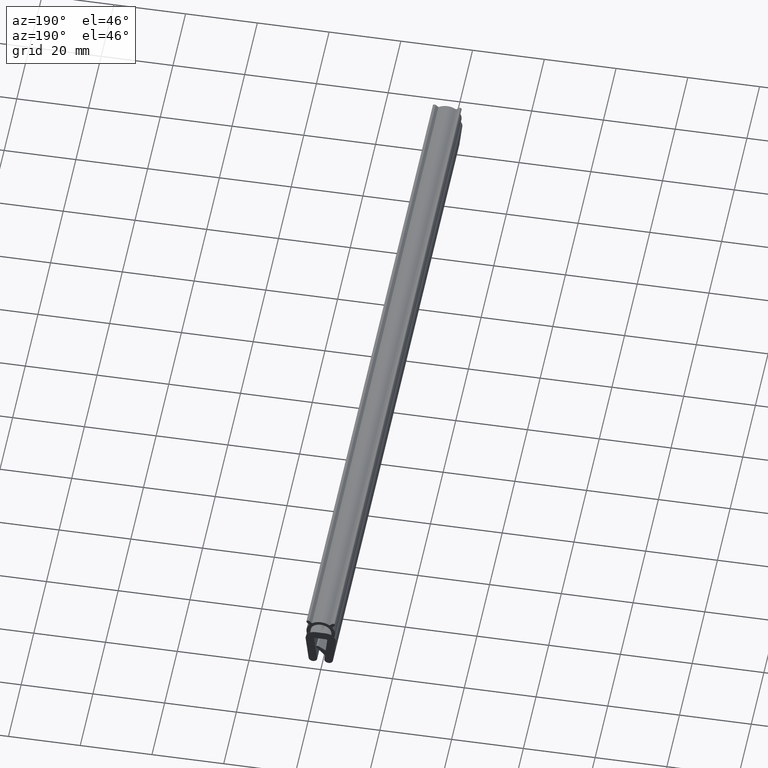
[diagram: clean part render]
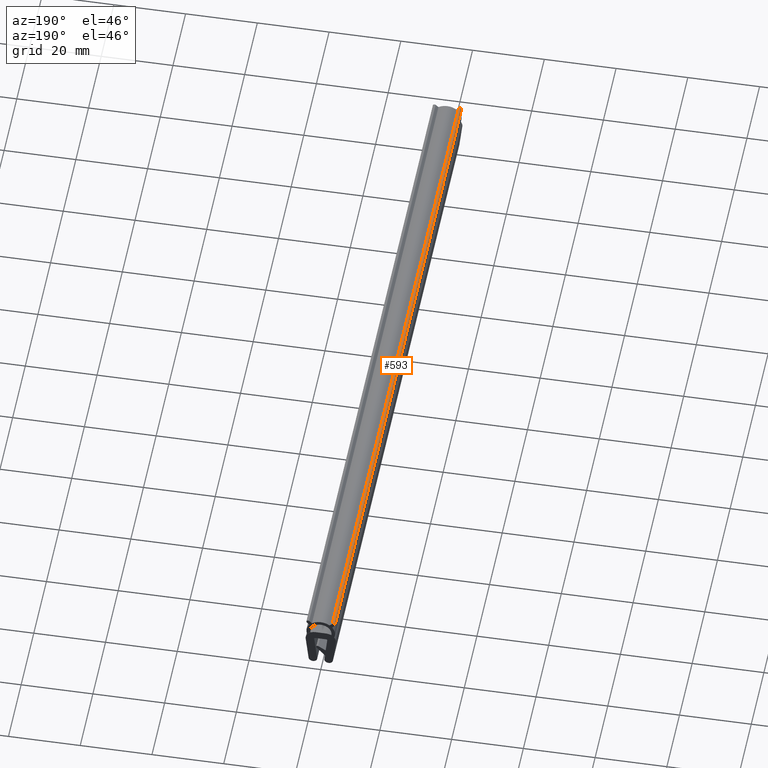
[diagram: same view with one face highlighted and labeled with its STEP entity id]
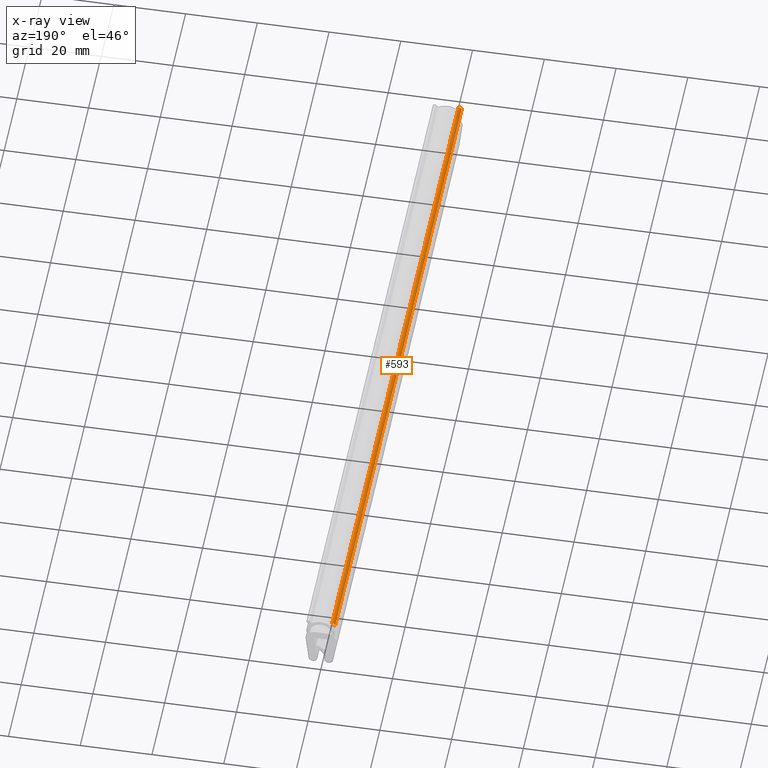
[diagram: x-ray of the same camera — body ghosted, the highlighted face saturated]
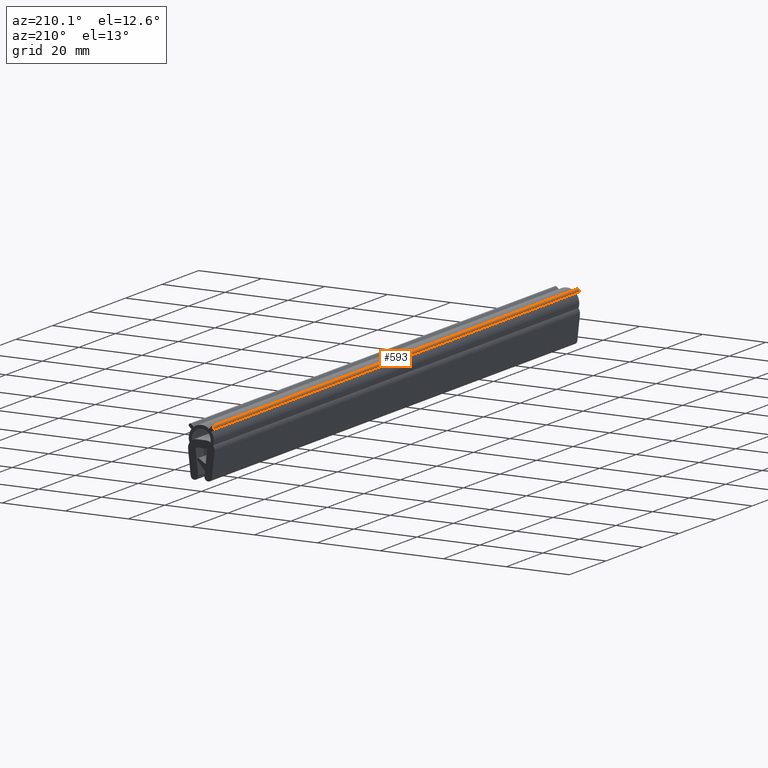
[diagram: same view with one face highlighted and labeled with its STEP entity id]
A machine part, auxiliary view. The second image highlights one B-rep face of the part: STEP entity #593.
The next image is the same camera in x-ray: the body ghosted, the highlighted face saturated — about 0% of this face is hidden behind the body in this view.
A second angle (auxiliary view) of the same face is appended — the face is thin or edge-on in the first view.
In plain terms, the highlighted face is a freeform B-spline surface patch.
Its self-contained STEP definition (entity closure, byte-faithful):
#163=CARTESIAN_POINT('',(-3.146446609406730,0.0,-0.146446609406737));
#164=VERTEX_POINT('',#163);
#170=CARTESIAN_POINT('',(-3.853553390593290,0.0,-0.853553390593334));
#171=VERTEX_POINT('',#170);
#172=CARTESIAN_POINT('',(-3.146446609406730,0.0,-0.146446609406737));
#173=CARTESIAN_POINT('',(-3.350570754638666,0.0,0.057677535825195));
#174=CARTESIAN_POINT('',(-3.629409522551270,0.0,-0.017037086855482));
#175=CARTESIAN_POINT('',(-3.908248290463875,0.0,-0.091751709536160));
#176=CARTESIAN_POINT('',(-3.982962913144538,0.0,-0.370590477448768));
#177=CARTESIAN_POINT('',(-4.057677535825202,0.0,-0.649429245361377));
#178=CARTESIAN_POINT('',(-3.853553390593290,0.0,-0.853553390593334));
#186=(BOUNDED_CURVE()B_SPLINE_CURVE(2,(#172,#173,#174,#175,#176,#177,#178),.UNSPECIFIED.,.F.,.U.)B_SPLINE_CURVE_WITH_KNOTS((3,2,2,3),(0.0,0.333333333333333,0.666666666666667,1.0),.UNSPECIFIED.)CURVE()GEOMETRIC_REPRESENTATION_ITEM()RATIONAL_B_SPLINE_CURVE((1.0,0.866025403784436,1.0,0.866025403784436,1.0,0.866025403784436,1.0))REPRESENTATION_ITEM(''));
#187=EDGE_CURVE('',#164,#171,#186,.T.);
#249=CARTESIAN_POINT('',(-3.853553390593290,200.0,-0.853553390593334));
#250=VERTEX_POINT('',#249);
#256=CARTESIAN_POINT('',(-3.146446609406730,200.0,-0.146446609406737));
#257=VERTEX_POINT('',#256);
#258=CARTESIAN_POINT('',(-3.146446609406730,200.0,-0.146446609406737));
#259=CARTESIAN_POINT('',(-3.350570754638666,199.999999999999940,0.057677535825195));
#260=CARTESIAN_POINT('',(-3.629409522551270,200.0,-0.017037086855482));
#261=CARTESIAN_POINT('',(-3.908248290463875,199.999999999999940,-0.091751709536160));
#262=CARTESIAN_POINT('',(-3.982962913144538,200.0,-0.370590477448768));
#263=CARTESIAN_POINT('',(-4.057677535825202,199.999999999999940,-0.649429245361377));
#264=CARTESIAN_POINT('',(-3.853553390593259,200.0,-0.853553390593302));
#272=(BOUNDED_CURVE()B_SPLINE_CURVE(2,(#258,#259,#260,#261,#262,#263,#264),.UNSPECIFIED.,.F.,.U.)B_SPLINE_CURVE_WITH_KNOTS((3,2,2,3),(0.0,0.333333333333333,0.666666666666667,1.0),.UNSPECIFIED.)CURVE()GEOMETRIC_REPRESENTATION_ITEM()RATIONAL_B_SPLINE_CURVE((1.0,0.866025403784436,1.0,0.866025403784436,1.0,0.866025403784436,1.0))REPRESENTATION_ITEM(''));
#273=EDGE_CURVE('',#257,#250,#272,.T.);
#557=CARTESIAN_POINT('',(-3.146446609406730,200.0,-0.146446609406737));
#558=CARTESIAN_POINT('',(-3.146446609406730,0.0,-0.146446609406737));
#559=QUASI_UNIFORM_CURVE('',1,(#557,#558),.UNSPECIFIED.,.F.,.U.);
#560=EDGE_CURVE('',#257,#164,#559,.T.);
#565=CARTESIAN_POINT('',(-3.844177287846861,205.0,-0.862687185506173));
#566=CARTESIAN_POINT('',(-3.844177287846861,-5.125000000000000,-0.862687185506173));
#567=CARTESIAN_POINT('',(-4.223045264553611,205.000000000000110,-0.503154900148539));
#568=CARTESIAN_POINT('',(-4.223045264553611,-5.125000000000000,-0.503154900148539));
#569=CARTESIAN_POINT('',(-3.847329185229514,205.0,-0.140330099830702));
#570=CARTESIAN_POINT('',(-3.847329185229514,-5.125000000000000,-0.140330099830702));
#571=CARTESIAN_POINT('',(-3.471613105905417,205.000000000000110,0.222494700487134));
#572=CARTESIAN_POINT('',(-3.471613105905417,-5.125000000000000,0.222494700487134));
#573=CARTESIAN_POINT('',(-3.125522139605512,205.0,-0.168689975892128));
#574=CARTESIAN_POINT('',(-3.125522139605512,-5.125000000000000,-0.168689975892128));
#582=(BOUNDED_SURFACE()B_SPLINE_SURFACE(1,2,((#565,#567,#569,#571,#573),(#566,#568,#570,#572,#574)),.UNSPECIFIED.,.F.,.F.,.U.)B_SPLINE_SURFACE_WITH_KNOTS((2,2),(3,2,3),(0.0,210.125000000000000),(0.0,1.0,2.0),.UNSPECIFIED.)GEOMETRIC_REPRESENTATION_ITEM()RATIONAL_B_SPLINE_SURFACE(((1.0,0.691513055782269,1.0,0.691513055782269,1.0),(1.0,0.691513055782269,1.0,0.691513055782269,1.0)))REPRESENTATION_ITEM('')SURFACE());
#583=ORIENTED_EDGE('',*,*,#187,.F.);
#584=ORIENTED_EDGE('',*,*,#560,.F.);
#585=ORIENTED_EDGE('',*,*,#273,.T.);
#586=CARTESIAN_POINT('',(-3.853553390593290,200.0,-0.853553390593334));
#587=CARTESIAN_POINT('',(-3.853553390593290,0.0,-0.853553390593334));
#588=QUASI_UNIFORM_CURVE('',1,(#586,#587),.UNSPECIFIED.,.F.,.U.);
#589=EDGE_CURVE('',#250,#171,#588,.T.);
#590=ORIENTED_EDGE('',*,*,#589,.T.);
#591=EDGE_LOOP('',(#583,#584,#585,#590));
#592=FACE_OUTER_BOUND('',#591,.T.);
#593=ADVANCED_FACE('',(#592),#582,.T.);